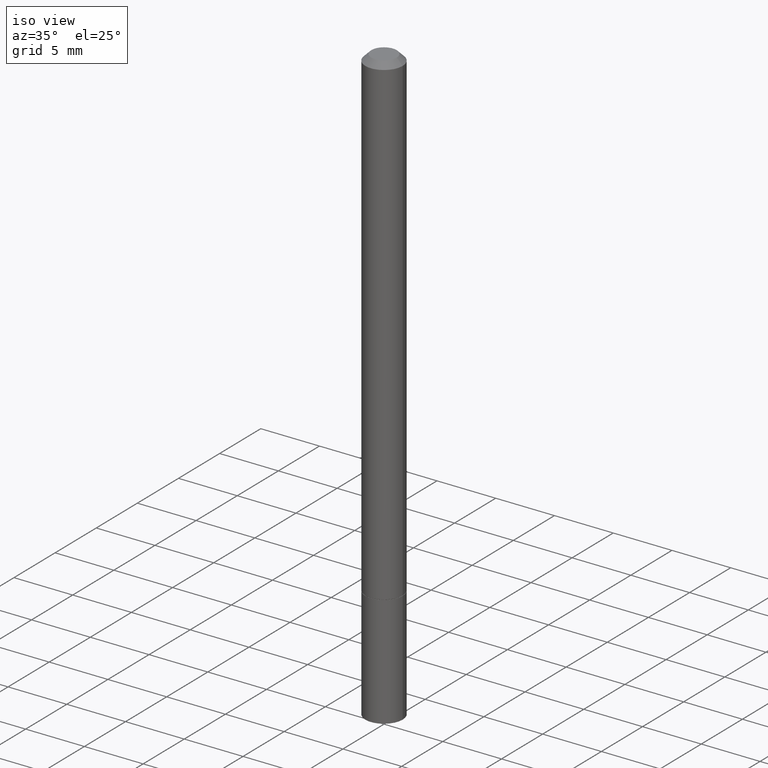
[diagram: clean part render]
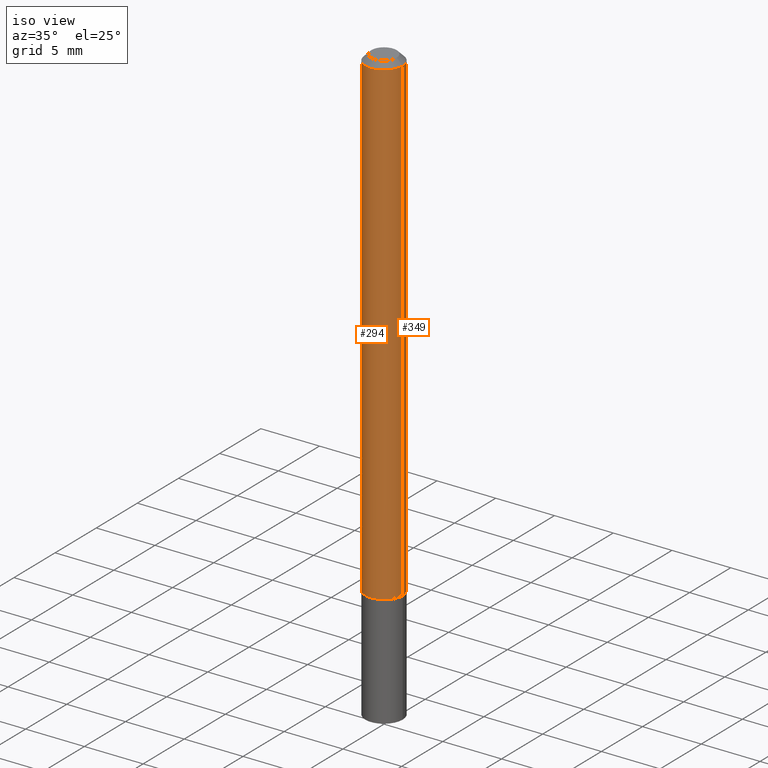
[diagram: same view with one multi-face feature highlighted, each face labeled with its STEP entity id]
A machine part, iso view. The highlighted faces form ONE feature: a constant-radius fillet chain: 2 tangent blend faces with common blend radius 1.5875 mm. The faces share edges in the B-rep.
Their STEP definitions:
[1] entity #294 (Cylinder):
#5 = EDGE_LOOP ( 'NONE', ( #328, #31, #238, #210 ) ) ;
#10 = VECTOR ( 'NONE', #48, 39.37007874015748143 ) ;
#14 = EDGE_CURVE ( 'NONE', #155, #107, #299, .T. ) ;
#17 = CARTESIAN_POINT ( 'NONE',  ( -0.06249999999999981265, 3.666055405785273851E-16, -0.02000000000000000736 ) ) ;
#18 = DIRECTION ( 'NONE',  ( -2.445468806185136597E-29, 3.491481338843145583E-15, 1.000000000000000000 ) ) ;
#31 = ORIENTED_EDGE ( 'NONE', *, *, #235, .T. ) ;
#36 = VERTEX_POINT ( 'NONE', #147 ) ;
#40 = AXIS2_PLACEMENT_3D ( 'NONE', #256, #319, #115 ) ;
#48 = DIRECTION ( 'NONE',  ( -2.445468806185136877E-29, 3.491481338843145188E-15, 1.000000000000000000 ) ) ;
#62 = CARTESIAN_POINT ( 'NONE',  ( 0.06249999999999991673, -4.364351673553910778E-16, 3.047610484872455667E-30 ) ) ;
#63 = CIRCLE ( 'NONE', #227, 0.06250000000000001388 ) ;
#74 = VERTEX_POINT ( 'NONE', #340 ) ;
#93 = EDGE_CURVE ( 'NONE', #36, #107, #316, .T. ) ;
#100 = LINE ( 'NONE', #274, #10 ) ;
#106 = CARTESIAN_POINT ( 'NONE',  ( 3.971441341244661927E-29, -5.670165694281268417E-15, -1.623999999999999888 ) ) ;
#107 = VERTEX_POINT ( 'NONE', #289 ) ;
#115 = DIRECTION ( 'NONE',  ( 1.000000000000000000, -6.982962677686266711E-15, 0.000000000000000000 ) ) ;
#147 = CARTESIAN_POINT ( 'NONE',  ( 0.06250000000000001388, -6.106600861636660086E-15, -1.623999999999999888 ) ) ;
#151 = AXIS2_PLACEMENT_3D ( 'NONE', #209, #326, #304 ) ;
#152 = EDGE_CURVE ( 'NONE', #74, #155, #100, .T. ) ;
#155 = VERTEX_POINT ( 'NONE', #17 ) ;
#158 = DIRECTION ( 'NONE',  ( 1.000000000000000000, -6.982962677686261189E-15, 0.000000000000000000 ) ) ;
#175 = VECTOR ( 'NONE', #320, 39.37007874015748143 ) ;
#183 = CYLINDRICAL_SURFACE ( 'NONE', #151, 0.06249999999999991673 ) ;
#209 = CARTESIAN_POINT ( 'NONE',  ( 0.000000000000000000, 0.000000000000000000, 0.000000000000000000 ) ) ;
#210 = ORIENTED_EDGE ( 'NONE', *, *, #14, .F. ) ;
#227 = AXIS2_PLACEMENT_3D ( 'NONE', #106, #18, #158 ) ;
#235 = EDGE_CURVE ( 'NONE', #74, #36, #63, .T. ) ;
#238 = ORIENTED_EDGE ( 'NONE', *, *, #93, .T. ) ;
#256 = CARTESIAN_POINT ( 'NONE',  ( 4.890937612370274910E-31, -6.982962677686295307E-17, -0.02000000000000000736 ) ) ;
#274 = CARTESIAN_POINT ( 'NONE',  ( -0.06249999999999991673, 4.440892098500620245E-16, -3.074334431409311910E-30 ) ) ;
#289 = CARTESIAN_POINT ( 'NONE',  ( 0.06249999999999981265, -4.986107516375823445E-16, -0.02000000000000000736 ) ) ;
#294 = ADVANCED_FACE ( 'NONE', ( #364 ), #183, .T. ) ;
#299 = CIRCLE ( 'NONE', #40, 0.06249999999999981265 ) ;
#304 = DIRECTION ( 'NONE',  ( 1.000000000000000000, -6.982962677686266711E-15, 4.876176775795935793E-29 ) ) ;
#316 = LINE ( 'NONE', #62, #175 ) ;
#319 = DIRECTION ( 'NONE',  ( -2.445468806185136597E-29, 3.491481338843145583E-15, 1.000000000000000000 ) ) ;
#320 = DIRECTION ( 'NONE',  ( -2.445468806185136877E-29, 3.491481338843145188E-15, 1.000000000000000000 ) ) ;
#326 = DIRECTION ( 'NONE',  ( -2.445468806185136597E-29, 3.491481338843145583E-15, 1.000000000000000000 ) ) ;
#328 = ORIENTED_EDGE ( 'NONE', *, *, #152, .F. ) ;
#340 = CARTESIAN_POINT ( 'NONE',  ( -0.06250000000000001388, -2.425908450678998508E-15, -1.623999999999999888 ) ) ;
#364 = FACE_OUTER_BOUND ( 'NONE', #5, .T. ) ;
[2] entity #349 (Cylinder):
#8 = CARTESIAN_POINT ( 'NONE',  ( 3.971441341244661927E-29, -5.670165694281268417E-15, -1.623999999999999888 ) ) ;
#10 = VECTOR ( 'NONE', #48, 39.37007874015748143 ) ;
#17 = CARTESIAN_POINT ( 'NONE',  ( -0.06249999999999981265, 3.666055405785273851E-16, -0.02000000000000000736 ) ) ;
#20 = ORIENTED_EDGE ( 'NONE', *, *, #24, .T. ) ;
#24 = EDGE_CURVE ( 'NONE', #36, #74, #305, .T. ) ;
#30 = FACE_OUTER_BOUND ( 'NONE', #342, .T. ) ;
#33 = ORIENTED_EDGE ( 'NONE', *, *, #140, .F. ) ;
#36 = VERTEX_POINT ( 'NONE', #147 ) ;
#48 = DIRECTION ( 'NONE',  ( -2.445468806185136877E-29, 3.491481338843145188E-15, 1.000000000000000000 ) ) ;
#62 = CARTESIAN_POINT ( 'NONE',  ( 0.06249999999999991673, -4.364351673553910778E-16, 3.047610484872455667E-30 ) ) ;
#74 = VERTEX_POINT ( 'NONE', #340 ) ;
#84 = AXIS2_PLACEMENT_3D ( 'NONE', #94, #91, #166 ) ;
#91 = DIRECTION ( 'NONE',  ( -2.445468806185136597E-29, 3.491481338843145583E-15, 1.000000000000000000 ) ) ;
#93 = EDGE_CURVE ( 'NONE', #36, #107, #316, .T. ) ;
#94 = CARTESIAN_POINT ( 'NONE',  ( 0.000000000000000000, 0.000000000000000000, 0.000000000000000000 ) ) ;
#100 = LINE ( 'NONE', #274, #10 ) ;
#107 = VERTEX_POINT ( 'NONE', #289 ) ;
#134 = DIRECTION ( 'NONE',  ( -2.445468806185136597E-29, 3.491481338843145583E-15, 1.000000000000000000 ) ) ;
#140 = EDGE_CURVE ( 'NONE', #107, #155, #178, .T. ) ;
#147 = CARTESIAN_POINT ( 'NONE',  ( 0.06250000000000001388, -6.106600861636660086E-15, -1.623999999999999888 ) ) ;
#152 = EDGE_CURVE ( 'NONE', #74, #155, #100, .T. ) ;
#155 = VERTEX_POINT ( 'NONE', #17 ) ;
#166 = DIRECTION ( 'NONE',  ( 1.000000000000000000, -6.982962677686266711E-15, 4.876176775795935793E-29 ) ) ;
#172 = DIRECTION ( 'NONE',  ( 1.000000000000000000, -6.982962677686261189E-15, 0.000000000000000000 ) ) ;
#175 = VECTOR ( 'NONE', #320, 39.37007874015748143 ) ;
#178 = CIRCLE ( 'NONE', #278, 0.06249999999999981265 ) ;
#211 = CARTESIAN_POINT ( 'NONE',  ( 4.890937612370274910E-31, -6.982962677686295307E-17, -0.02000000000000000736 ) ) ;
#216 = DIRECTION ( 'NONE',  ( 1.000000000000000000, -6.982962677686266711E-15, 0.000000000000000000 ) ) ;
#223 = ORIENTED_EDGE ( 'NONE', *, *, #152, .T. ) ;
#248 = CYLINDRICAL_SURFACE ( 'NONE', #84, 0.06249999999999991673 ) ;
#263 = AXIS2_PLACEMENT_3D ( 'NONE', #8, #134, #172 ) ;
#274 = CARTESIAN_POINT ( 'NONE',  ( -0.06249999999999991673, 4.440892098500620245E-16, -3.074334431409311910E-30 ) ) ;
#278 = AXIS2_PLACEMENT_3D ( 'NONE', #211, #303, #216 ) ;
#282 = ORIENTED_EDGE ( 'NONE', *, *, #93, .F. ) ;
#289 = CARTESIAN_POINT ( 'NONE',  ( 0.06249999999999981265, -4.986107516375823445E-16, -0.02000000000000000736 ) ) ;
#303 = DIRECTION ( 'NONE',  ( -2.445468806185136597E-29, 3.491481338843145583E-15, 1.000000000000000000 ) ) ;
#305 = CIRCLE ( 'NONE', #263, 0.06250000000000001388 ) ;
#316 = LINE ( 'NONE', #62, #175 ) ;
#320 = DIRECTION ( 'NONE',  ( -2.445468806185136877E-29, 3.491481338843145188E-15, 1.000000000000000000 ) ) ;
#340 = CARTESIAN_POINT ( 'NONE',  ( -0.06250000000000001388, -2.425908450678998508E-15, -1.623999999999999888 ) ) ;
#342 = EDGE_LOOP ( 'NONE', ( #20, #223, #33, #282 ) ) ;
#349 = ADVANCED_FACE ( 'NONE', ( #30 ), #248, .T. ) ;